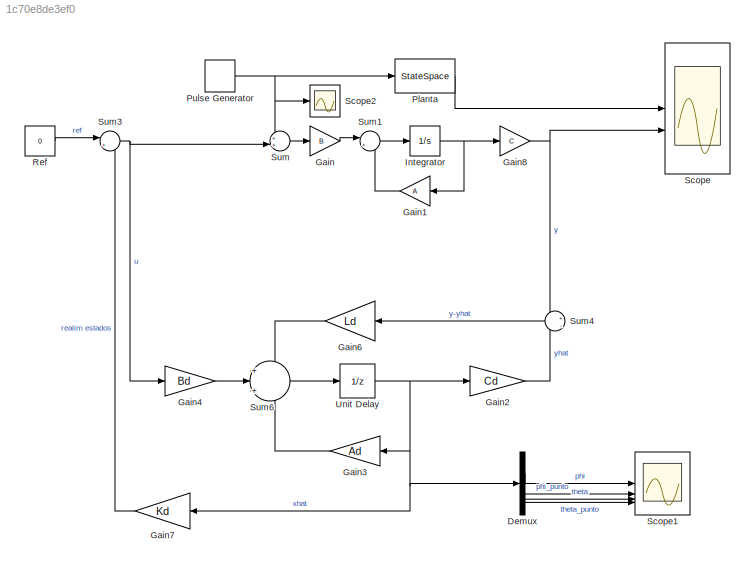
MODEL slx_1c70e8de3ef0
KIND model
CONFIG AbsTol = auto
CONFIG EnableMultiTasking = off
CONFIG FixedStep = auto
CONFIG MaxStep = auto
CONFIG MinStep = auto
CONFIG RelTol = 1e-3
CONFIG SampleTimeConstraint = Unconstrained
CONFIG SolverName = VariableStepAuto
CONFIG StartTime = 0.0
CONFIG StopTime = 10.0
BLOCK [Demux] Demux
BLOCK [Gain] Gain
  Gain = B
  Multiplication = Matrix(K*u)
BLOCK [Gain] Gain1
  Gain = A
  Multiplication = Matrix(K*u)
  NameLocation = top
BLOCK [Gain] Gain2
  Gain = Cd
  Multiplication = Matrix(K*u)
BLOCK [Gain] Gain3
  Gain = Ad
  Multiplication = Matrix(K*u)
  NameLocation = top
BLOCK [Gain] Gain4
  Gain = Bd
  Multiplication = Matrix(K*u)
BLOCK [Gain] Gain6
  Gain = Ld
  Multiplication = Matrix(K*u)
  NameLocation = top
BLOCK [Gain] Gain7
  Gain = Kd
  Multiplication = Matrix(K*u)
  NameLocation = top
BLOCK [Gain] Gain8
  Gain = C
  Multiplication = Matrix(K*u)
BLOCK [Integrator] Integrator
BLOCK [StateSpace] Planta
  A = A
  B = B
  C = C
  D = 0
  InitialCondition = [x1e,x2e,x3e,x4e]
BLOCK [DiscretePulseGenerator] Pulse Generator
  Amplitude = -20
  Period = 30
  PhaseDelay = 3
  PulseType = Time based
  PulseWidth = 0.1
BLOCK [Constant] Ref
  Value = 0
BLOCK [Scope] Scope
  Floating = off
  NumInputPorts = 2
  ScopeSpecificationString = Simulink.scopes.TimeScopeBlockCfg('CurrentConfiguration', extmgr.ConfigurationSet(extmgr.Configuration('Core','General UI',true),extmgr.Configuration('Core','Source UI',true),extmgr.Configuration('Sources','WiredSimulink',true,'DataLoggingVariableName','ScopeData1'),extmgr.Configuration('Visuals','Time Domain',true,'SerializedDisplays',{struct('MinYLimReal','-1.79922','MaxYLimReal','2.22677','YLab...<+2032ch>
BLOCK [Scope] Scope1
  Floating = off
  NumInputPorts = 4
  ScopeSpecificationString = Simulink.scopes.TimeScopeBlockCfg('CurrentConfiguration', extmgr.ConfigurationSet(extmgr.Configuration('Core','General UI',true),extmgr.Configuration('Core','Source UI',true),extmgr.Configuration('Sources','WiredSimulink',true,'DataLoggingVariableName','ScopeData2'),extmgr.Configuration('Visuals','Time Domain',true,'SerializedDisplays',{struct('MinYLimReal','-0.99477','MaxYLimReal','1.20066','YLab...<+3382ch>
BLOCK [Scope] Scope2
  Floating = off
  NumInputPorts = 1
  ScopeSpecificationString = Simulink.scopes.TimeScopeBlockCfg('CurrentConfiguration', extmgr.ConfigurationSet(extmgr.Configuration('Core','General UI',true),extmgr.Configuration('Core','Source UI',true),extmgr.Configuration('Sources','WiredSimulink',true),extmgr.Configuration('Visuals','Time Domain',true,'SerializedDisplays',{struct('MinYLimReal','-22.5','MaxYLimReal','2.5','YLabelReal','','MinYLimMag','0.00000','MaxYLimMag'...<+1342ch>
BLOCK [Sum] Sum
  Inputs = ++|
BLOCK [Sum] Sum1
  Inputs = |++
BLOCK [Sum] Sum3
  Inputs = |+-
BLOCK [Sum] Sum4
  Inputs = +|-
  NameLocation = top
BLOCK [Sum] Sum6
  Inputs = +|+|+
BLOCK [UnitDelay] Unit Delay
  HasFrameUpgradeWarning = on
  InitialCondition = [x1e,x2e,x3e,x4e]
  SampleTime = Ts
LINE Demux:1 -> Scope1:1
LINE Demux:2 -> Scope1:2
LINE Demux:3 -> Scope1:3
LINE Demux:4 -> Scope1:4
LINE Gain1:1 -> Sum1:2
LINE Gain2:1 -> Sum4:2
LINE Gain3:1 -> Sum6:3
LINE Gain4:1 -> Sum6:2
LINE Gain6:1 -> Sum6:1
LINE Gain7:1 -> Sum3:2
NET Gain8:1 -> Scope:2, Sum4:1
LINE Gain:1 -> Sum1:1
NET Integrator:1 -> Gain1:1, Gain8:1
LINE Planta:1 -> Scope:1
NET Pulse Generator:1 -> Planta:1, Scope2:1, Sum:1
LINE Ref:1 -> Sum3:1
LINE Sum1:1 -> Integrator:1
NET Sum3:1 -> Gain4:1, Sum:2
LINE Sum4:1 -> Gain6:1
LINE Sum6:1 -> Unit Delay:1
LINE Sum:1 -> Gain:1
NET Unit Delay:1 -> Demux:1, Gain2:1, Gain3:1, Gain7:1
note: NET lines group one-source signal fan-out (src -> all destinations, sorted); 1:1 wires keep LINE
